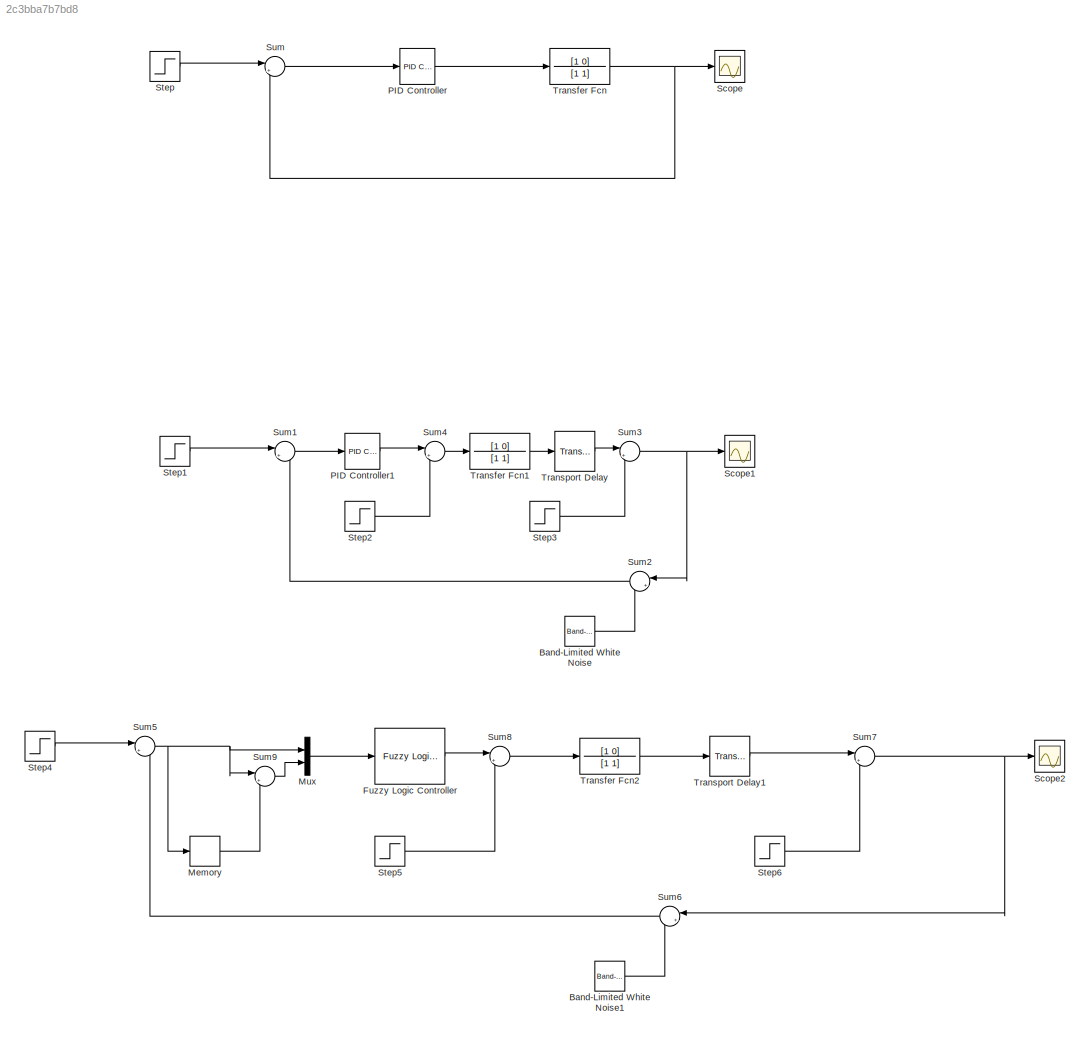
MODEL slx_2c3bba7b7bd8
KIND model
CONFIG AbsTol = auto
CONFIG EnableMultiTasking = off
CONFIG FixedStep = auto
CONFIG MaxStep = auto
CONFIG MinStep = auto
CONFIG RelTol = 1e-3
CONFIG SampleTimeConstraint = Unconstrained
CONFIG SolverName = VariableStepAuto
CONFIG StartTime = 0.0
CONFIG StopTime = 10.0
BLOCK [Reference] Band-Limited White Noise  REF=simulink/Sources/Band-Limited
White Noise
  SourceBlock = simulink/Sources/Band-Limited\nWhite Noise
  SourceType = Band-Limited White Noise.
BLOCK [Reference] Band-Limited White Noise1  REF=simulink/Sources/Band-Limited
White Noise
  SourceBlock = simulink/Sources/Band-Limited\nWhite Noise
  SourceType = Band-Limited White Noise.
BLOCK [Reference] Fuzzy Logic Controller  REF=fuzblock/Fuzzy Logic   (lib defined in mdl_858b3b3e7478)
Controller
  SourceBlock = fuzblock/Fuzzy Logic \nController
  SourceType = Fuzzy Inference System
BLOCK [Memory] Memory
BLOCK [Mux] Mux
  DisplayOption = bar
  Inputs = 2
BLOCK [Reference] PID Controller  REF=slpidlib/PID Controller
  LibrarySourceBlock = simulink/Continuous/PID Controller
  SourceBlock = slpidlib/PID Controller
  SourceType = PID 1dof
BLOCK [Reference] PID Controller1  REF=slpidlib/PID Controller
  LibrarySourceBlock = simulink/Continuous/PID Controller
  SourceBlock = slpidlib/PID Controller
  SourceType = PID 1dof
BLOCK [Scope] Scope
  Floating = off
  NumInputPorts = 1
  ScopeSpecificationString = Simulink.scopes.TimeScopeBlockCfg('CurrentConfiguration', extmgr.ConfigurationSet(extmgr.Configuration('Core','General UI',true),extmgr.Configuration('Core','Source UI',true),extmgr.Configuration('Sources','WiredSimulink',true),extmgr.Configuration('Visuals','Time Domain',true,'SerializedDisplays',{struct('MinYLimReal','0.32862','MaxYLimReal','0.9525','YLabelReal','','MinYLimMag','0.32862','MaxYLi...<+1359ch>
BLOCK [Scope] Scope1
  Floating = off
  NumInputPorts = 1
  ScopeSpecificationString = Simulink.scopes.TimeScopeBlockCfg('CurrentConfiguration', extmgr.ConfigurationSet(extmgr.Configuration('Core','General UI',true),extmgr.Configuration('Core','Source UI',true),extmgr.Configuration('Sources','WiredSimulink',true,'DataLoggingVariableName','ScopeData1'),extmgr.Configuration('Visuals','Time Domain',true,'SerializedDisplays',{struct('MinYLimReal','-5494112219624.42188','MaxYLimReal','85...<+1490ch>
BLOCK [Scope] Scope2
  Floating = off
  NumInputPorts = 1
  ScopeSpecificationString = Simulink.scopes.TimeScopeBlockCfg('CurrentConfiguration', extmgr.ConfigurationSet(extmgr.Configuration('Core','General UI',true),extmgr.Configuration('Core','Source UI',true),extmgr.Configuration('Sources','WiredSimulink',true,'DataLoggingVariableName','ScopeData2'),extmgr.Configuration('Visuals','Time Domain',true,'SerializedDisplays',{struct('MinYLimReal','-0.7963','MaxYLimReal','0.89256','YLabe...<+1394ch>
BLOCK [Step] Step
  SampleTime = 0
  Time = 0
BLOCK [Step] Step1
  SampleTime = 0
  Time = 0
BLOCK [Step] Step2
  After = 0.2
  SampleTime = 0
  Time = 3
BLOCK [Step] Step3
  After = 0.1
  SampleTime = 0
  Time = 6
BLOCK [Step] Step4
  SampleTime = 0
  Time = 0
BLOCK [Step] Step5
  After = 0.2
  SampleTime = 0
  Time = 3
BLOCK [Step] Step6
  After = 0.1
  SampleTime = 0
  Time = 6
BLOCK [Sum] Sum
  Inputs = |+-
BLOCK [Sum] Sum1
  Inputs = |+-
BLOCK [Sum] Sum2
  Inputs = |++
  NameLocation = top
BLOCK [Sum] Sum3
  Inputs = |++
BLOCK [Sum] Sum4
  Inputs = |++
BLOCK [Sum] Sum5
  Inputs = |+-
BLOCK [Sum] Sum6
  Inputs = |++
  NameLocation = top
BLOCK [Sum] Sum7
  Inputs = |++
BLOCK [Sum] Sum8
  Inputs = |++
BLOCK [Sum] Sum9
  Inputs = |++
BLOCK [TransferFcn] Transfer Fcn
  Denominator = [1 1]
  Numerator = [1 0]
BLOCK [TransferFcn] Transfer Fcn1
  Denominator = [1 1]
  Numerator = [1 0]
BLOCK [TransferFcn] Transfer Fcn2
  Denominator = [1 1]
  Numerator = [1 0]
BLOCK [TransportDelay] Transport Delay
BLOCK [TransportDelay] Transport Delay1
LINE Band-Limited White Noise1:1 -> Sum6:2
LINE Band-Limited White Noise:1 -> Sum2:2
LINE Fuzzy Logic Controller:1 -> Sum8:1
LINE Memory:1 -> Sum9:2
LINE Mux:1 -> Fuzzy Logic Controller:1
LINE PID Controller1:1 -> Sum4:1
LINE PID Controller:1 -> Transfer Fcn:1
LINE Step1:1 -> Sum1:1
LINE Step2:1 -> Sum4:2
LINE Step3:1 -> Sum3:2
LINE Step4:1 -> Sum5:1
LINE Step5:1 -> Sum8:2
LINE Step6:1 -> Sum7:2
LINE Step:1 -> Sum:1
LINE Sum1:1 -> PID Controller1:1
LINE Sum2:1 -> Sum1:2
NET Sum3:1 -> Scope1:1, Sum2:1
LINE Sum4:1 -> Transfer Fcn1:1
NET Sum5:1 -> Memory:1, Mux:1, Sum9:1
LINE Sum6:1 -> Sum5:2
NET Sum7:1 -> Scope2:1, Sum6:1
LINE Sum8:1 -> Transfer Fcn2:1
LINE Sum9:1 -> Mux:2
LINE Sum:1 -> PID Controller:1
LINE Transfer Fcn1:1 -> Transport Delay:1
LINE Transfer Fcn2:1 -> Transport Delay1:1
NET Transfer Fcn:1 -> Scope:1, Sum:2
LINE Transport Delay1:1 -> Sum7:1
LINE Transport Delay:1 -> Sum3:1
note: NET lines group one-source signal fan-out (src -> all destinations, sorted); 1:1 wires keep LINE
